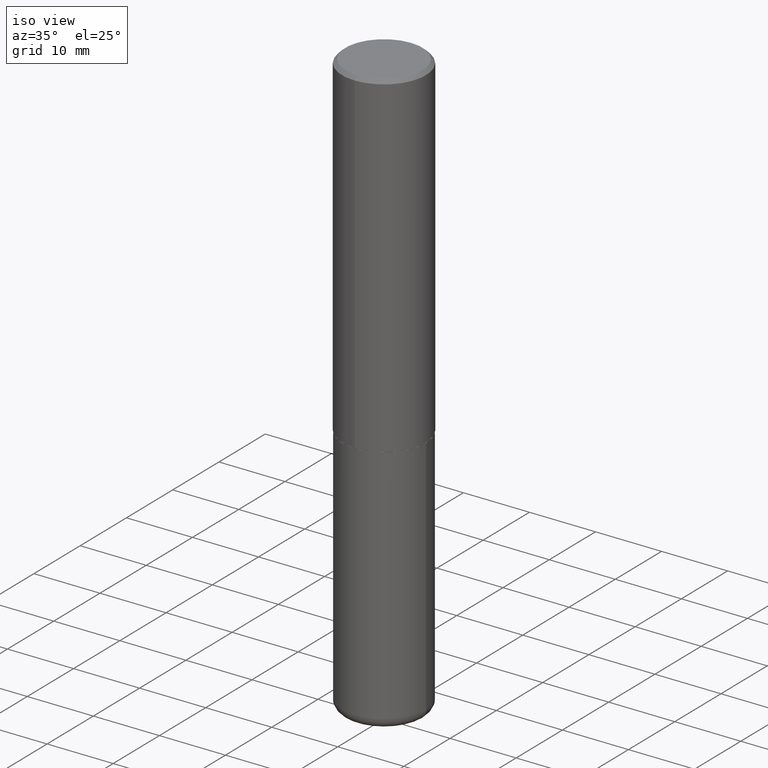
[diagram: clean part render]
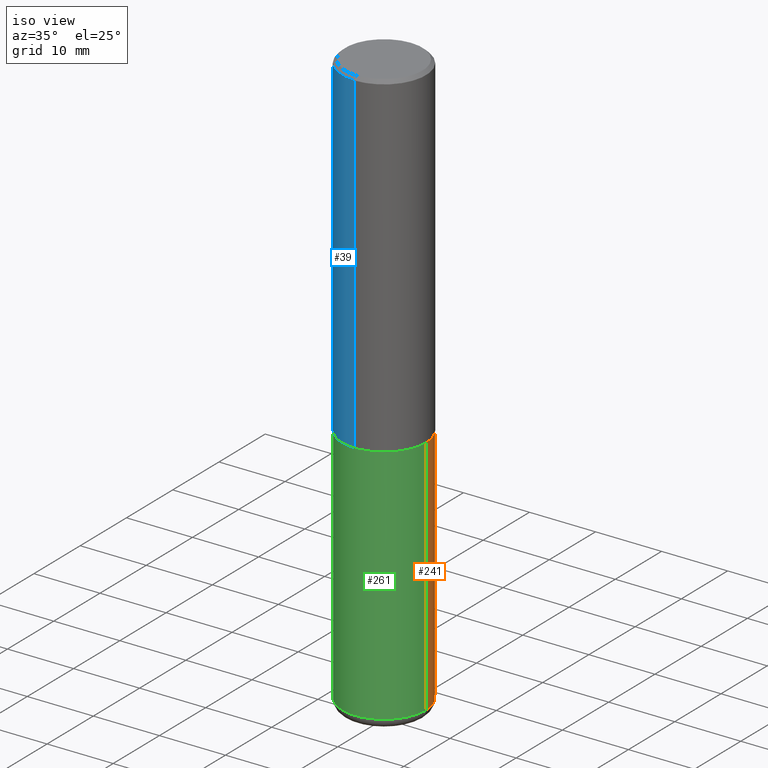
[diagram: same view with three faces highlighted in distinct colors, each labeled with its STEP entity id]
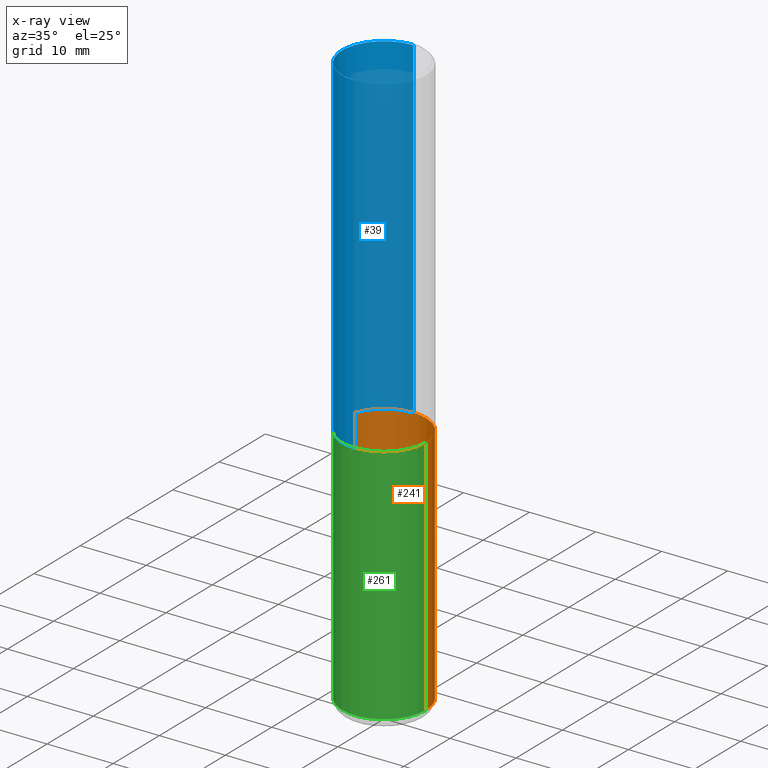
[diagram: x-ray of the same camera — body ghosted, the three highlighted faces saturated]
A machine part, iso view with three faces highlighted in distinct colors.
The next image is the same camera in x-ray (body ghosted, the three faces saturated) — at least one of them is partly hidden behind the body in this view.
Their STEP definitions:

[orange] entity #241 — the highlighted cylindrical surface (partial cylindrical patch) has radius 6.35 mm, axis along (-0, 0, 1).
#3 = DIRECTION ( 'NONE',  ( 1.000000000000000000, -6.982962677686266711E-15, 0.000000000000000000 ) ) ;
#15 = CARTESIAN_POINT ( 'NONE',  ( 0.2500000000000000000, -1.745740669421566678E-15, 1.219044193948983948E-29 ) ) ;
#60 = EDGE_CURVE ( 'NONE', #152, #129, #244, .T. ) ;
#76 = DIRECTION ( 'NONE',  ( -2.445468806185136597E-29, 3.491481338843145583E-15, 1.000000000000000000 ) ) ;
#89 = AXIS2_PLACEMENT_3D ( 'NONE', #327, #266, #3 ) ;
#95 = ORIENTED_EDGE ( 'NONE', *, *, #60, .F. ) ;
#101 = CARTESIAN_POINT ( 'NONE',  ( -0.2499999999999999722, -1.023433896622016898E-14, -3.439999999999999947 ) ) ;
#110 = CARTESIAN_POINT ( 'NONE',  ( 8.412412693276869938E-29, -1.201069580562042103E-14, -3.439999999999999947 ) ) ;
#128 = ORIENTED_EDGE ( 'NONE', *, *, #302, .T. ) ;
#129 = VERTEX_POINT ( 'NONE', #175 ) ;
#130 = VERTEX_POINT ( 'NONE', #237 ) ;
#141 = CARTESIAN_POINT ( 'NONE',  ( 0.000000000000000000, 0.000000000000000000, 0.000000000000000000 ) ) ;
#144 = VECTOR ( 'NONE', #147, 39.37007874015748143 ) ;
#147 = DIRECTION ( 'NONE',  ( -2.445468806185136877E-29, 3.491481338843145188E-15, 1.000000000000000000 ) ) ;
#152 = VERTEX_POINT ( 'NONE', #336 ) ;
#163 = DIRECTION ( 'NONE',  ( -2.445468806185136597E-29, 3.491481338843145583E-15, 1.000000000000000000 ) ) ;
#175 = CARTESIAN_POINT ( 'NONE',  ( 0.2500000000000000000, -8.728703347107857054E-15, -2.000000000000000000 ) ) ;
#176 = FACE_OUTER_BOUND ( 'NONE', #314, .T. ) ;
#188 = LINE ( 'NONE', #417, #204 ) ;
#204 = VECTOR ( 'NONE', #398, 39.37007874015748143 ) ;
#212 = ORIENTED_EDGE ( 'NONE', *, *, #219, .T. ) ;
#219 = EDGE_CURVE ( 'NONE', #285, #130, #188, .T. ) ;
#228 = CIRCLE ( 'NONE', #324, 0.2500000000000000000 ) ;
#237 = CARTESIAN_POINT ( 'NONE',  ( -0.2500000000000000000, -7.720472402253106025E-15, -2.000000000000000000 ) ) ;
#241 = ADVANCED_FACE ( 'NONE', ( #176 ), #361, .T. ) ;
#244 = LINE ( 'NONE', #15, #144 ) ;
#266 = DIRECTION ( 'NONE',  ( -2.445468806185136597E-29, 3.491481338843145583E-15, 1.000000000000000000 ) ) ;
#285 = VERTEX_POINT ( 'NONE', #101 ) ;
#302 = EDGE_CURVE ( 'NONE', #152, #285, #228, .T. ) ;
#307 = EDGE_CURVE ( 'NONE', #129, #130, #403, .T. ) ;
#314 = EDGE_LOOP ( 'NONE', ( #128, #212, #346, #95 ) ) ;
#324 = AXIS2_PLACEMENT_3D ( 'NONE', #110, #163, #356 ) ;
#327 = CARTESIAN_POINT ( 'NONE',  ( 4.890937612370273194E-29, -6.982962677686291165E-15, -2.000000000000000000 ) ) ;
#336 = CARTESIAN_POINT ( 'NONE',  ( 0.2499999999999999722, -1.375643647504198770E-14, -3.439999999999999947 ) ) ;
#346 = ORIENTED_EDGE ( 'NONE', *, *, #307, .F. ) ;
#356 = DIRECTION ( 'NONE',  ( 1.000000000000000000, -6.982962677686270655E-15, 0.000000000000000000 ) ) ;
#361 = CYLINDRICAL_SURFACE ( 'NONE', #415, 0.2500000000000000000 ) ;
#398 = DIRECTION ( 'NONE',  ( -2.445468806185136877E-29, 3.491481338843145188E-15, 1.000000000000000000 ) ) ;
#400 = DIRECTION ( 'NONE',  ( 1.000000000000000000, -6.982962677686266711E-15, 4.876176775795935793E-29 ) ) ;
#403 = CIRCLE ( 'NONE', #89, 0.2500000000000000000 ) ;
#415 = AXIS2_PLACEMENT_3D ( 'NONE', #141, #76, #400 ) ;
#417 = CARTESIAN_POINT ( 'NONE',  ( -0.2500000000000000000, 1.776356839400250465E-15, -1.229733772563726445E-29 ) ) ;

[blue] entity #39 — the highlighted cylindrical surface (partial cylindrical patch) has radius 6.35 mm, axis along (-0, 0, 1).
#4 = AXIS2_PLACEMENT_3D ( 'NONE', #46, #335, #267 ) ;
#10 = VECTOR ( 'NONE', #376, 39.37007874015748143 ) ;
#39 = ADVANCED_FACE ( 'NONE', ( #120 ), #57, .T. ) ;
#40 = CARTESIAN_POINT ( 'NONE',  ( -1.745740669421519543E-15, -0.2500000000000072720, -1.998999999999999000 ) ) ;
#42 = EDGE_CURVE ( 'NONE', #229, #252, #275, .T. ) ;
#46 = CARTESIAN_POINT ( 'NONE',  ( 4.885713903752978284E-29, -6.983449793884546288E-15, -1.998999999999999888 ) ) ;
#57 = CYLINDRICAL_SURFACE ( 'NONE', #240, 0.2500000000000001110 ) ;
#70 = ORIENTED_EDGE ( 'NONE', *, *, #185, .T. ) ;
#92 = DIRECTION ( 'NONE',  ( -2.444078991372175563E-29, 3.493471632758652550E-15, 1.000000000000000000 ) ) ;
#111 = LINE ( 'NONE', #233, #10 ) ;
#117 = CARTESIAN_POINT ( 'NONE',  ( -1.715124499442882496E-15, -0.2500000000000001110, -0.01999999999999921632 ) ) ;
#120 = FACE_OUTER_BOUND ( 'NONE', #390, .T. ) ;
#137 = VECTOR ( 'NONE', #92, 39.37007874015748143 ) ;
#153 = DIRECTION ( 'NONE',  ( -2.444078991372175563E-29, 3.493471632758652550E-15, 1.000000000000000000 ) ) ;
#161 = EDGE_CURVE ( 'NONE', #252, #223, #369, .T. ) ;
#185 = EDGE_CURVE ( 'NONE', #349, #223, #111, .T. ) ;
#191 = ORIENTED_EDGE ( 'NONE', *, *, #42, .F. ) ;
#215 = CARTESIAN_POINT ( 'NONE',  ( 1.776356839400276103E-15, 0.2499999999999932832, -1.999000000000000776 ) ) ;
#221 = AXIS2_PLACEMENT_3D ( 'NONE', #401, #364, #338 ) ;
#223 = VERTEX_POINT ( 'NONE', #117 ) ;
#229 = VERTEX_POINT ( 'NONE', #215 ) ;
#233 = CARTESIAN_POINT ( 'NONE',  ( -1.745740669421567467E-15, -0.2500000000000001110, 8.733679081896635319E-16 ) ) ;
#238 = EDGE_CURVE ( 'NONE', #229, #349, #374, .T. ) ;
#240 = AXIS2_PLACEMENT_3D ( 'NONE', #414, #153, #249 ) ;
#249 = DIRECTION ( 'NONE',  ( -6.982962677686266711E-15, -1.000000000000000000, 3.493471632758652550E-15 ) ) ;
#252 = VERTEX_POINT ( 'NONE', #410 ) ;
#255 = ORIENTED_EDGE ( 'NONE', *, *, #238, .T. ) ;
#267 = DIRECTION ( 'NONE',  ( -6.982962677686265922E-15, -1.000000000000000000, 3.278217592397112312E-15 ) ) ;
#275 = LINE ( 'NONE', #378, #137 ) ;
#335 = DIRECTION ( 'NONE',  ( -2.444078991372175563E-29, 3.493471632758652550E-15, 1.000000000000000000 ) ) ;
#338 = DIRECTION ( 'NONE',  ( -6.982962677686265133E-15, -1.000000000000000000, 3.500180241882336472E-15 ) ) ;
#349 = VERTEX_POINT ( 'NONE', #40 ) ;
#352 = ORIENTED_EDGE ( 'NONE', *, *, #161, .F. ) ;
#364 = DIRECTION ( 'NONE',  ( -2.444078991372175563E-29, 3.493471632758652550E-15, 1.000000000000000000 ) ) ;
#369 = CIRCLE ( 'NONE', #221, 0.2500000000000000555 ) ;
#374 = CIRCLE ( 'NONE', #4, 0.2500000000000002776 ) ;
#376 = DIRECTION ( 'NONE',  ( -2.444078991372175563E-29, 3.493471632758652550E-15, 1.000000000000000000 ) ) ;
#378 = CARTESIAN_POINT ( 'NONE',  ( 1.776356839400251254E-15, 0.2500000000000001110, -8.733679081896635319E-16 ) ) ;
#390 = EDGE_LOOP ( 'NONE', ( #191, #255, #70, #352 ) ) ;
#401 = CARTESIAN_POINT ( 'NONE',  ( 4.888157982744373443E-31, -6.986943265517335816E-17, -0.02000000000000009062 ) ) ;
#410 = CARTESIAN_POINT ( 'NONE',  ( 1.745740669421567269E-15, 0.2499999999999999722, -0.02000000000000096492 ) ) ;
#414 = CARTESIAN_POINT ( 'NONE',  ( 0.000000000000000000, 0.000000000000000000, 0.000000000000000000 ) ) ;

[green] entity #261 — the highlighted cylindrical surface (partial cylindrical patch) has radius 6.35 mm, axis along (-0, 0, 1).
#1 = DIRECTION ( 'NONE',  ( -2.445468806185136597E-29, 3.491481338843145583E-15, 1.000000000000000000 ) ) ;
#8 = EDGE_CURVE ( 'NONE', #130, #129, #63, .T. ) ;
#15 = CARTESIAN_POINT ( 'NONE',  ( 0.2500000000000000000, -1.745740669421566678E-15, 1.219044193948983948E-29 ) ) ;
#22 = CARTESIAN_POINT ( 'NONE',  ( 0.000000000000000000, 0.000000000000000000, 0.000000000000000000 ) ) ;
#32 = ORIENTED_EDGE ( 'NONE', *, *, #177, .T. ) ;
#34 = DIRECTION ( 'NONE',  ( 1.000000000000000000, -6.982962677686270655E-15, 0.000000000000000000 ) ) ;
#60 = EDGE_CURVE ( 'NONE', #152, #129, #244, .T. ) ;
#63 = CIRCLE ( 'NONE', #121, 0.2500000000000000000 ) ;
#101 = CARTESIAN_POINT ( 'NONE',  ( -0.2499999999999999722, -1.023433896622016898E-14, -3.439999999999999947 ) ) ;
#105 = CARTESIAN_POINT ( 'NONE',  ( 8.412412693276869938E-29, -1.201069580562042103E-14, -3.439999999999999947 ) ) ;
#121 = AXIS2_PLACEMENT_3D ( 'NONE', #377, #1, #393 ) ;
#129 = VERTEX_POINT ( 'NONE', #175 ) ;
#130 = VERTEX_POINT ( 'NONE', #237 ) ;
#144 = VECTOR ( 'NONE', #147, 39.37007874015748143 ) ;
#147 = DIRECTION ( 'NONE',  ( -2.445468806185136877E-29, 3.491481338843145188E-15, 1.000000000000000000 ) ) ;
#152 = VERTEX_POINT ( 'NONE', #336 ) ;
#175 = CARTESIAN_POINT ( 'NONE',  ( 0.2500000000000000000, -8.728703347107857054E-15, -2.000000000000000000 ) ) ;
#177 = EDGE_CURVE ( 'NONE', #285, #152, #270, .T. ) ;
#188 = LINE ( 'NONE', #417, #204 ) ;
#204 = VECTOR ( 'NONE', #398, 39.37007874015748143 ) ;
#210 = DIRECTION ( 'NONE',  ( 1.000000000000000000, -6.982962677686266711E-15, 4.876176775795935793E-29 ) ) ;
#219 = EDGE_CURVE ( 'NONE', #285, #130, #188, .T. ) ;
#237 = CARTESIAN_POINT ( 'NONE',  ( -0.2500000000000000000, -7.720472402253106025E-15, -2.000000000000000000 ) ) ;
#244 = LINE ( 'NONE', #15, #144 ) ;
#247 = DIRECTION ( 'NONE',  ( -2.445468806185136597E-29, 3.491481338843145583E-15, 1.000000000000000000 ) ) ;
#260 = EDGE_LOOP ( 'NONE', ( #287, #32, #289, #387 ) ) ;
#261 = ADVANCED_FACE ( 'NONE', ( #301 ), #310, .T. ) ;
#270 = CIRCLE ( 'NONE', #303, 0.2500000000000000000 ) ;
#285 = VERTEX_POINT ( 'NONE', #101 ) ;
#287 = ORIENTED_EDGE ( 'NONE', *, *, #219, .F. ) ;
#289 = ORIENTED_EDGE ( 'NONE', *, *, #60, .T. ) ;
#301 = FACE_OUTER_BOUND ( 'NONE', #260, .T. ) ;
#303 = AXIS2_PLACEMENT_3D ( 'NONE', #105, #247, #34 ) ;
#310 = CYLINDRICAL_SURFACE ( 'NONE', #396, 0.2500000000000000000 ) ;
#336 = CARTESIAN_POINT ( 'NONE',  ( 0.2499999999999999722, -1.375643647504198770E-14, -3.439999999999999947 ) ) ;
#377 = CARTESIAN_POINT ( 'NONE',  ( 4.890937612370273194E-29, -6.982962677686291165E-15, -2.000000000000000000 ) ) ;
#387 = ORIENTED_EDGE ( 'NONE', *, *, #8, .F. ) ;
#393 = DIRECTION ( 'NONE',  ( 1.000000000000000000, -6.982962677686266711E-15, 0.000000000000000000 ) ) ;
#396 = AXIS2_PLACEMENT_3D ( 'NONE', #22, #404, #210 ) ;
#398 = DIRECTION ( 'NONE',  ( -2.445468806185136877E-29, 3.491481338843145188E-15, 1.000000000000000000 ) ) ;
#404 = DIRECTION ( 'NONE',  ( -2.445468806185136597E-29, 3.491481338843145583E-15, 1.000000000000000000 ) ) ;
#417 = CARTESIAN_POINT ( 'NONE',  ( -0.2500000000000000000, 1.776356839400250465E-15, -1.229733772563726445E-29 ) ) ;